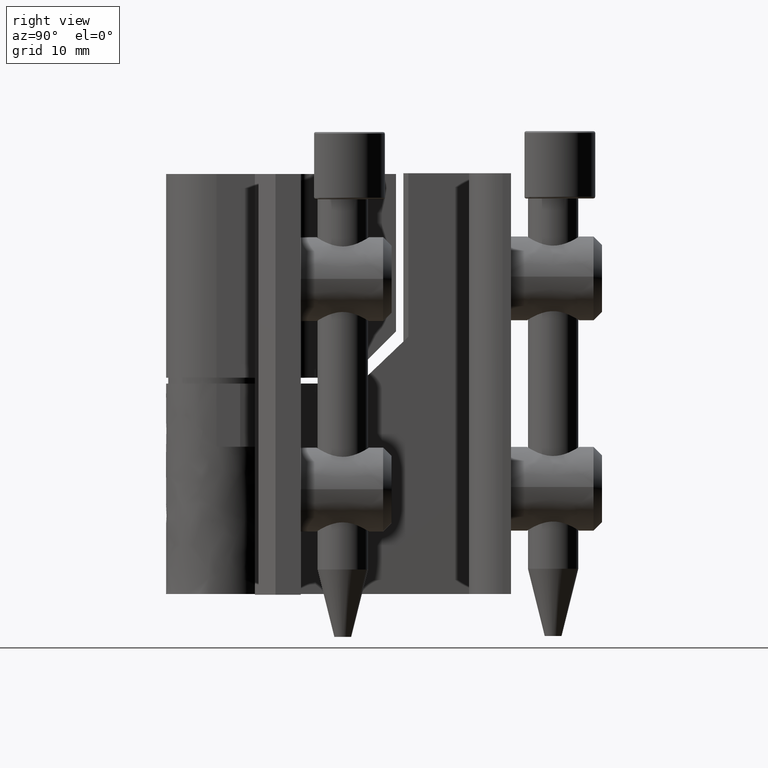
[diagram: clean part render]
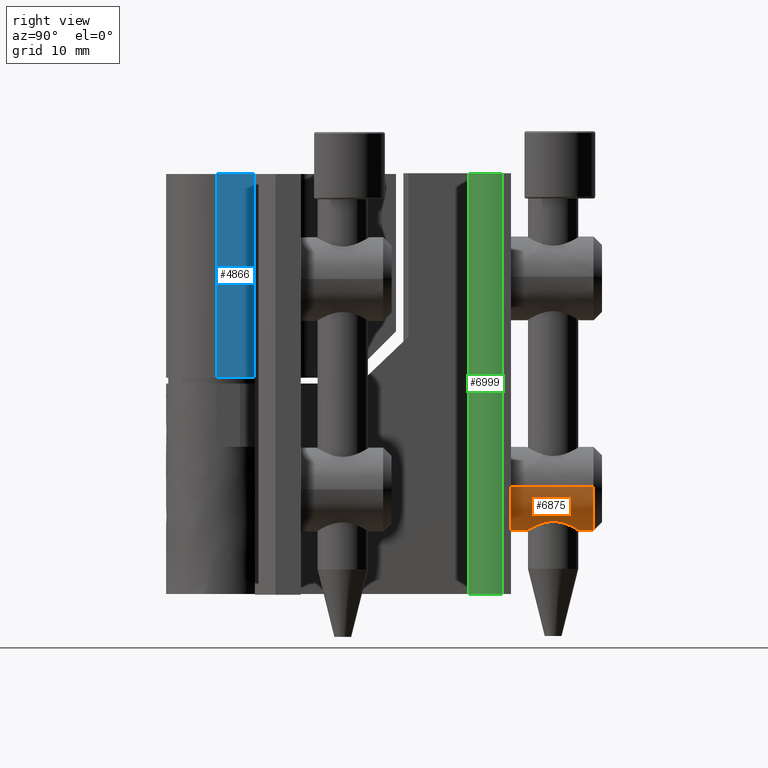
[diagram: same view with three faces highlighted in distinct colors, each labeled with its STEP entity id]
A machine part, right view with three faces highlighted in distinct colors.
Their STEP definitions:

[orange] entity #6875 — the highlighted face is a freeform B-spline surface patch.
#5155=CARTESIAN_POINT('',(16.988968205702800,43.099968465432852,7.525013327143846));
#5156=VERTEX_POINT('',#5155);
#5157=CARTESIAN_POINT('',(20.076019667212169,40.384796938776873,8.589914018851204));
#5158=VERTEX_POINT('',#5157);
#5159=CARTESIAN_POINT('',(16.988968205702800,43.099968465432852,7.525013327143846));
#5160=CARTESIAN_POINT('',(17.198393258616068,43.100686197953223,7.524548569083834));
#5161=CARTESIAN_POINT('',(17.404955985047540,43.080420136254830,7.537259386909917));
#5162=CARTESIAN_POINT('',(17.710643216144220,43.019230044572708,7.574946306571508));
#5163=CARTESIAN_POINT('',(17.812292314731739,42.993468698943403,7.590736091635986));
#5164=CARTESIAN_POINT('',(18.009519537886000,42.932833868835608,7.627468337347260));
#5165=CARTESIAN_POINT('',(18.105618272561951,42.897922678692623,7.648446630334513));
#5166=CARTESIAN_POINT('',(18.293080363551390,42.819267994474323,7.695012138907357));
#5167=CARTESIAN_POINT('',(18.384444056901170,42.775526505107599,7.720601361653727));
#5168=CARTESIAN_POINT('',(18.518058149245618,42.703342948240042,7.762034692775442));
#5169=CARTESIAN_POINT('',(18.562128124394349,42.678117574677970,7.776391017480516));
#5170=CARTESIAN_POINT('',(18.648544897906859,42.625803899112803,7.805851809689370));
#5171=CARTESIAN_POINT('',(18.690865965266429,42.598741701802169,7.820943075198093));
#5172=CARTESIAN_POINT('',(18.898222455475320,42.459011591830233,7.897966341771268));
#5173=CARTESIAN_POINT('',(19.050636098705020,42.333238809322729,7.964596804282546));
#5174=CARTESIAN_POINT('',(19.260749005330020,42.123392172423863,8.067647162425505));
#5175=CARTESIAN_POINT('',(19.327875837400981,42.049575236022939,8.102637736740972));
#5176=CARTESIAN_POINT('',(19.453711816944161,41.897105655604641,8.171593756969466));
#5177=CARTESIAN_POINT('',(19.512701927711859,41.818237795209541,8.205685599576492));
#5178=CARTESIAN_POINT('',(19.678261274716061,41.573453215685262,8.305458274818937));
#5179=CARTESIAN_POINT('',(19.773559772797540,41.399478424640492,8.368725148944275));
#5180=CARTESIAN_POINT('',(19.872883164686140,41.165808008446980,8.438252905645191));
#5181=CARTESIAN_POINT('',(19.891693907005770,41.118337868233922,8.451637946301837));
#5182=CARTESIAN_POINT('',(19.926852015939438,41.022791668502769,8.476982896764790));
#5183=CARTESIAN_POINT('',(19.943254031015819,40.974591334550873,8.488980903379046));
#5184=CARTESIAN_POINT('',(19.988926827561901,40.828672389997251,8.522763372446402));
#5185=CARTESIAN_POINT('',(20.014663734815151,40.729634317716048,8.542329116761225));
#5186=CARTESIAN_POINT('',(20.052132053298880,40.548640496168247,8.571184776951640));
#5187=CARTESIAN_POINT('',(20.065696470159459,40.467280351914589,8.581791201790180));
#5188=CARTESIAN_POINT('',(20.076019667212169,40.384796938776873,8.589914018851204));
#5189=B_SPLINE_CURVE_WITH_KNOTS('',3,(#5159,#5160,#5161,#5162,#5163,#5164,#5165,#5166,#5167,#5168,#5169,#5170,#5171,#5172,#5173,#5174,#5175,#5176,#5177,#5178,#5179,#5180,#5181,#5182,#5183,#5184,#5185,#5186,#5187,#5188),.UNSPECIFIED.,.F.,.U.,(4,2,2,2,2,2,2,2,2,2,2,2,2,2,4),(0.500000000000014,0.531250000000014,0.546875000000013,0.562500000000013,0.578125000000012,0.585937500000012,0.593750000000012,0.625000000000012,0.640625000000011,0.656250000000011,0.687500000000011,0.695312500000010,0.703125000000010,0.718750000000009,0.731145047173596),.UNSPECIFIED.);
#5190=EDGE_CURVE('',#5156,#5158,#5189,.T.);
#5272=CARTESIAN_POINT('',(13.900122840445709,39.972942222683670,8.608808314004055));
#5273=VERTEX_POINT('',#5272);
#5279=CARTESIAN_POINT('',(13.900122840445709,39.972942222683670,8.608808314004055));
#5280=CARTESIAN_POINT('',(13.900062961870731,39.979774783309132,8.608856040039306));
#5281=CARTESIAN_POINT('',(13.900025811113061,39.986602339152867,8.608885656416613));
#5282=CARTESIAN_POINT('',(13.899569124321800,40.203312665602837,8.609249496516124));
#5283=CARTESIAN_POINT('',(13.920222770609559,40.409507495406828,8.592539752993538));
#5284=CARTESIAN_POINT('',(13.981502486259441,40.713684613501783,8.545262351322654));
#5285=CARTESIAN_POINT('',(14.007187344541910,40.814562474990112,8.525696519962532));
#5286=CARTESIAN_POINT('',(14.067389896207620,41.010063467917462,8.481068028952816));
#5287=CARTESIAN_POINT('',(14.101979499245241,41.105264724927217,8.455948600910931));
#5288=CARTESIAN_POINT('',(14.179825108612439,41.291019226898911,8.401282073135262));
#5289=CARTESIAN_POINT('',(14.223075710480961,41.381575504166179,8.371738216785131));
#5290=CARTESIAN_POINT('',(14.294468225308870,41.514136656480822,8.324892623233804));
#5291=CARTESIAN_POINT('',(14.319335970998750,41.557725288564257,8.308868932839390));
#5292=CARTESIAN_POINT('',(14.370791643165211,41.643081220658381,8.276399292947064));
#5293=CARTESIAN_POINT('',(14.397430996826600,41.684947095365949,8.259919242389396));
#5294=CARTESIAN_POINT('',(14.535137394846750,41.890393319340433,8.176616529297814));
#5295=CARTESIAN_POINT('',(14.659583205616620,42.042461169669728,8.107134268835148));
#5296=CARTESIAN_POINT('',(14.833991969993001,42.218301768091749,8.021100846584542));
#5297=CARTESIAN_POINT('',(14.869918584797890,42.252825464572183,8.003890750226972));
#5298=CARTESIAN_POINT('',(14.943157854940290,42.319879046943939,7.969917688649448));
#5299=CARTESIAN_POINT('',(14.980488320564950,42.352438461510012,7.953143008516847));
#5300=CARTESIAN_POINT('',(15.094614292673629,42.447284567298468,7.903588189829659));
#5301=CARTESIAN_POINT('',(15.173534511648270,42.506755130904757,7.871579061561344));
#5302=CARTESIAN_POINT('',(15.419111288797360,42.673958615340759,7.779621950261450));
#5303=CARTESIAN_POINT('',(15.594447702652889,42.770670031982540,7.723705928388862));
#5304=CARTESIAN_POINT('',(15.972212889642250,42.931864064871057,7.628427804732023));
#5305=CARTESIAN_POINT('',(16.167289858143590,42.993152072173508,7.590998456638343));
#5306=CARTESIAN_POINT('',(16.468877166636339,43.055859431325253,7.552394992509092));
#5307=CARTESIAN_POINT('',(16.570940795088980,43.071885684291509,7.542448442011565));
#5308=CARTESIAN_POINT('',(16.778287577486111,43.093813102292387,7.528858032901595));
#5309=CARTESIAN_POINT('',(16.884255640218441,43.099609572588783,7.525245501728962));
#5310=CARTESIAN_POINT('',(16.988968205702800,43.099968465432852,7.525013327143846));
#5311=B_SPLINE_CURVE_WITH_KNOTS('',3,(#5279,#5280,#5281,#5282,#5283,#5284,#5285,#5286,#5287,#5288,#5289,#5290,#5291,#5292,#5293,#5294,#5295,#5296,#5297,#5298,#5299,#5300,#5301,#5302,#5303,#5304,#5305,#5306,#5307,#5308,#5309,#5310),.UNSPECIFIED.,.F.,.U.,(4,2,2,2,2,2,2,2,2,2,2,2,2,2,2,4),(0.248984492729017,0.250000000000022,0.281250000000021,0.296875000000021,0.312500000000020,0.328125000000019,0.335937500000019,0.343750000000018,0.375000000000016,0.382812500000016,0.390625000000016,0.406250000000016,0.437500000000015,0.468750000000014,0.484375000000014,0.500000000000014),.UNSPECIFIED.);
#5312=EDGE_CURVE('',#5273,#5156,#5311,.T.);
#5339=CARTESIAN_POINT('',(17.000001124969010,36.900001718161207,7.525001093430121));
#5340=VERTEX_POINT('',#5339);
#5341=CARTESIAN_POINT('',(20.076019667212169,40.384796938776873,8.589914018851204));
#5342=CARTESIAN_POINT('',(20.078709763223010,40.363303078905993,8.592030755912363));
#5343=CARTESIAN_POINT('',(20.081179767191639,40.341732944493849,8.593978845943676));
#5344=CARTESIAN_POINT('',(20.094289837163060,40.215389087271909,8.604332795659740));
#5345=CARTESIAN_POINT('',(20.099727628290928,40.111010182294073,8.608682874581286));
#5346=CARTESIAN_POINT('',(20.100224573381439,39.902873580245043,8.609078935959197));
#5347=CARTESIAN_POINT('',(20.095213091988100,39.799120080382451,8.605069465674021));
#5348=CARTESIAN_POINT('',(20.079894188575771,39.643952527444668,8.592961234954048));
#5349=CARTESIAN_POINT('',(20.073492372771920,39.592306751776363,8.587916387690319));
#5350=CARTESIAN_POINT('',(20.058057045323210,39.489169324097773,8.575838916128920));
#5351=CARTESIAN_POINT('',(20.048982764089232,39.437503861983018,8.568774963486883));
#5352=CARTESIAN_POINT('',(19.997466676857378,39.182323362226477,8.529035566847156));
#5353=CARTESIAN_POINT('',(19.937017790697521,38.987628990835717,8.483316829099405));
#5354=CARTESIAN_POINT('',(19.819509015417928,38.707481552115873,8.400815537662023));
#5355=CARTESIAN_POINT('',(19.775647773099351,38.615886036577493,8.370876025335701));
#5356=CARTESIAN_POINT('',(19.680566124606042,38.439697689319139,8.308526556378764));
#5357=CARTESIAN_POINT('',(19.629202566794500,38.354678920021293,8.276009105934396));
#5358=CARTESIAN_POINT('',(19.518902789156542,38.190332668595289,8.209320244924333));
#5359=CARTESIAN_POINT('',(19.459969621232521,38.111003159062797,8.175148832903746));
#5360=CARTESIAN_POINT('',(19.334347534963161,37.957790625723270,8.106071429656629));
#5361=CARTESIAN_POINT('',(19.267414209058131,37.883731019527232,8.071057968271106));
#5362=CARTESIAN_POINT('',(19.058122144772550,37.673379625631313,7.968006371482654));
#5363=CARTESIAN_POINT('',(18.906486087960239,37.547471816995973,7.901426973710140));
#5364=CARTESIAN_POINT('',(18.659417915902051,37.379674220715422,7.809083066608964));
#5365=CARTESIAN_POINT('',(18.573783578876292,37.327263746772580,7.779556805517050));
#5366=CARTESIAN_POINT('',(18.439936803716972,37.254246631417757,7.737710285479833));
#5367=CARTESIAN_POINT('',(18.394583231692110,37.230944562192612,7.724224679711495));
#5368=CARTESIAN_POINT('',(18.303130659738851,37.186764418973517,7.698464684932207));
#5369=CARTESIAN_POINT('',(18.256923596244000,37.165826006806078,7.686156065308746));
#5370=CARTESIAN_POINT('',(18.023479378288449,37.066824447398382,7.627609308590335));
#5371=CARTESIAN_POINT('',(17.829035511220209,37.005805433437693,7.590302130322784));
#5372=CARTESIAN_POINT('',(17.575485602734648,36.953480993485442,7.558132744365428));
#5373=CARTESIAN_POINT('',(17.524246946983560,36.944223742241697,7.552425451507994));
#5374=CARTESIAN_POINT('',(17.420663108094150,36.928229438175677,7.542544026281083));
#5375=CARTESIAN_POINT('',(17.368252181208000,36.921496077550302,7.538370586120243));
#5376=CARTESIAN_POINT('',(17.263458466455511,36.910759722325047,7.531704098677481));
#5377=CARTESIAN_POINT('',(17.210939209632620,36.906729813708942,7.529195654341100));
#5378=CARTESIAN_POINT('',(17.105655124963871,36.901348413589972,7.525844128514877));
#5379=CARTESIAN_POINT('',(17.052702492552630,36.899996908414302,7.525001029471605));
#5380=CARTESIAN_POINT('',(17.000001124969010,36.900001718161207,7.525001093430121));
#5381=B_SPLINE_CURVE_WITH_KNOTS('',3,(#5341,#5342,#5343,#5344,#5345,#5346,#5347,#5348,#5349,#5350,#5351,#5352,#5353,#5354,#5355,#5356,#5357,#5358,#5359,#5360,#5361,#5362,#5363,#5364,#5365,#5366,#5367,#5368,#5369,#5370,#5371,#5372,#5373,#5374,#5375,#5376,#5377,#5378,#5379,#5380),.UNSPECIFIED.,.F.,.U.,(4,2,2,2,2,2,2,2,2,2,2,2,2,2,2,2,2,2,2,4),(0.731145047173596,0.734375000000009,0.750000000000008,0.765625000000007,0.773437500000007,0.781250000000007,0.812500000000007,0.828125000000007,0.843750000000007,0.859375000000008,0.875000000000008,0.906250000000008,0.921875000000008,0.929687500000007,0.937500000000007,0.968750000000004,0.976562500000003,0.984375000000002,0.992187500000001,1.0),.UNSPECIFIED.);
#5382=EDGE_CURVE('',#5158,#5340,#5381,.T.);
#5384=CARTESIAN_POINT('',(17.000001124969010,36.900001718161207,7.525001093430121));
#5385=CARTESIAN_POINT('',(16.789195615954299,36.900020915040052,7.525001003242593));
#5386=CARTESIAN_POINT('',(16.582891732935281,36.921264371554201,7.538334035046797));
#5387=CARTESIAN_POINT('',(16.279718494915180,36.983104988201987,7.576364816341523));
#5388=CARTESIAN_POINT('',(16.179708877375301,37.008713222780813,7.592059882820777));
#5389=CARTESIAN_POINT('',(15.981800418429231,37.070147620137107,7.629268678488399));
#5390=CARTESIAN_POINT('',(15.885569345535560,37.105468131960237,7.650469914181983));
#5391=CARTESIAN_POINT('',(15.605192770850550,37.224088300081164,7.720642735818031));
#5392=CARTESIAN_POINT('',(15.428927681609689,37.320059380949338,7.776242510625052));
#5393=CARTESIAN_POINT('',(15.096120269588260,37.545289002634469,7.900283177922500));
#5394=CARTESIAN_POINT('',(14.944071730132301,37.671517485903621,7.967041672735165));
#5395=CARTESIAN_POINT('',(14.735805159790850,37.880327161481397,8.069422018714013));
#5396=CARTESIAN_POINT('',(14.669666416191861,37.953229646256823,8.103944271099795));
#5397=CARTESIAN_POINT('',(14.575337337373391,38.067789740361412,8.155703481745103));
#5398=CARTESIAN_POINT('',(14.544645007305309,38.106941115151393,8.172989990091930));
#5399=CARTESIAN_POINT('',(14.485406458070750,38.186374811423462,8.207145139707338));
#5400=CARTESIAN_POINT('',(14.456818782175869,38.226696144062053,8.224034428988917));
#5401=CARTESIAN_POINT('',(14.318915440579190,38.431353170372077,8.307267680786108));
#5402=CARTESIAN_POINT('',(14.224528585338430,38.604721804227879,8.370047906500346));
#5403=CARTESIAN_POINT('',(14.107110087973540,38.881493289216827,8.452274266975564));
#5404=CARTESIAN_POINT('',(14.072003755909940,38.976588286429987,8.477698407077375));
#5405=CARTESIAN_POINT('',(14.010570127049000,39.173011533954792,8.523144374561925));
#5406=CARTESIAN_POINT('',(13.984828108048220,39.272471056734219,8.542723228527208));
#5407=CARTESIAN_POINT('',(13.943226022609201,39.473981159469282,8.574769628128687));
#5408=CARTESIAN_POINT('',(13.927375969605420,39.576034547088803,8.587228562731337));
#5409=CARTESIAN_POINT('',(13.911248142197209,39.731177866407933,8.599965412042305));
#5410=CARTESIAN_POINT('',(13.907148938363290,39.783236458141580,8.603219813411343));
#5411=CARTESIAN_POINT('',(13.901942486259911,39.881254630175462,8.607358219101714));
#5412=CARTESIAN_POINT('',(13.900523572648320,39.927210530836682,8.608488913004383));
#5413=CARTESIAN_POINT('',(13.900122840445709,39.972942222683670,8.608808314004055));
#5414=B_SPLINE_CURVE_WITH_KNOTS('',3,(#5384,#5385,#5386,#5387,#5388,#5389,#5390,#5391,#5392,#5393,#5394,#5395,#5396,#5397,#5398,#5399,#5400,#5401,#5402,#5403,#5404,#5405,#5406,#5407,#5408,#5409,#5410,#5411,#5412,#5413),.UNSPECIFIED.,.F.,.U.,(4,2,2,2,2,2,2,2,2,2,2,2,2,2,4),(0.0,0.031250000000004,0.046875000000006,0.062500000000008,0.093750000000013,0.125000000000017,0.140625000000020,0.148437500000020,0.156250000000021,0.187500000000022,0.203125000000022,0.218750000000022,0.234375000000022,0.242187500000022,0.248984492729017),.UNSPECIFIED.);
#5415=EDGE_CURVE('',#5340,#5273,#5414,.T.);
#6465=CARTESIAN_POINT('',(17.000001124969000,44.800000275484599,7.525001093430110));
#6466=VERTEX_POINT('',#6465);
#6467=CARTESIAN_POINT('',(14.417707986534669,44.800000275483981,8.247662032544872));
#6468=VERTEX_POINT('',#6467);
#6469=CARTESIAN_POINT('',(17.000001124969000,44.800000275484599,7.525001093430110));
#6470=CARTESIAN_POINT('',(15.607735355693013,44.800000275484599,7.525001093430110));
#6471=CARTESIAN_POINT('',(14.417707986534669,44.800000275483981,8.247662032544872));
#6479=(BOUNDED_CURVE()B_SPLINE_CURVE(2,(#6469,#6470,#6471),.UNSPECIFIED.,.F.,.U.)B_SPLINE_CURVE_WITH_KNOTS((3,3),(0.0,0.088664854626110),.UNSPECIFIED.)CURVE()GEOMETRIC_REPRESENTATION_ITEM()RATIONAL_B_SPLINE_CURVE((1.0,0.896122661331728,0.865927475719211))REPRESENTATION_ITEM(''));
#6480=EDGE_CURVE('',#6466,#6468,#6479,.T.);
#6538=CARTESIAN_POINT('',(12.025190321412140,44.800000275460732,12.456586813336100));
#6539=VERTEX_POINT('',#6538);
#6545=CARTESIAN_POINT('',(12.037922431162141,44.800000275484599,12.858334118698631));
#6546=VERTEX_POINT('',#6545);
#6547=CARTESIAN_POINT('',(12.025190321412142,44.800000275460732,12.456586813336095));
#6548=CARTESIAN_POINT('',(12.025000888669291,44.800000275484592,12.478293658138734));
#6549=CARTESIAN_POINT('',(12.025000888669290,44.800000275484599,12.500001329729820));
#6550=CARTESIAN_POINT('',(12.025000888669293,44.800000275484599,12.679400700770566));
#6551=CARTESIAN_POINT('',(12.037922431162141,44.800000275484599,12.858334118698627));
#6559=(BOUNDED_CURVE()B_SPLINE_CURVE(2,(#6547,#6548,#6549,#6550,#6551),.UNSPECIFIED.,.F.,.U.)B_SPLINE_CURVE_WITH_KNOTS((3,2,3),(0.248460105648936,0.250000000000000,0.262561569263478),.UNSPECIFIED.)CURVE()GEOMETRIC_REPRESENTATION_ITEM()RATIONAL_B_SPLINE_CURVE((0.996414028063200,0.998195901547537,1.0,0.985283206180287,0.972045340559795))REPRESENTATION_ITEM(''));
#6560=EDGE_CURVE('',#6539,#6546,#6559,.T.);
#6577=CARTESIAN_POINT('',(21.970266263410160,44.800000275484592,12.717007792257130));
#6578=VERTEX_POINT('',#6577);
#6592=CARTESIAN_POINT('',(21.970266263410156,44.800000275484592,12.717007792257126));
#6593=CARTESIAN_POINT('',(21.975001361268713,44.800000275484599,12.608556221133716));
#6594=CARTESIAN_POINT('',(21.975001361268710,44.800000275484599,12.500001329729820));
#6595=CARTESIAN_POINT('',(21.975001361268710,44.800000275484614,7.525001093430110));
#6596=CARTESIAN_POINT('',(17.000001124969000,44.800000275484599,7.525001093430110));
#6604=(BOUNDED_CURVE()B_SPLINE_CURVE(2,(#6592,#6593,#6594,#6595,#6596),.UNSPECIFIED.,.F.,.U.)B_SPLINE_CURVE_WITH_KNOTS((3,2,3),(0.742354538564324,0.750000000000000,1.0),.UNSPECIFIED.)CURVE()GEOMETRIC_REPRESENTATION_ITEM()RATIONAL_B_SPLINE_CURVE((0.982633425875640,0.991042784763163,1.0,0.707106781186548,1.0))REPRESENTATION_ITEM(''));
#6605=EDGE_CURVE('',#6578,#6466,#6604,.T.);
#6624=CARTESIAN_POINT('',(14.417707986534669,44.800000275483981,8.247662032544872));
#6625=CARTESIAN_POINT('',(12.049370011997130,44.800000275484592,9.685868740373392));
#6626=CARTESIAN_POINT('',(12.025190321412149,44.800000275460725,12.456586813336093));
#6634=(BOUNDED_CURVE()B_SPLINE_CURVE(2,(#6624,#6625,#6626),.UNSPECIFIED.,.F.,.U.)B_SPLINE_CURVE_WITH_KNOTS((3,3),(0.088664854626110,0.248460105648936),.UNSPECIFIED.)CURVE()GEOMETRIC_REPRESENTATION_ITEM()RATIONAL_B_SPLINE_CURVE((0.865927475719211,0.811508537291132,0.996414028063200))REPRESENTATION_ITEM(''));
#6635=EDGE_CURVE('',#6468,#6539,#6634,.T.);
#6795=CARTESIAN_POINT('',(12.037922431158526,45.045000240557826,12.858334118648592));
#6796=CARTESIAN_POINT('',(12.017165707267457,45.045000240557819,12.570901596260709));
#6797=CARTESIAN_POINT('',(12.029735986524450,45.045000240557819,12.282994867280030));
#6798=CARTESIAN_POINT('',(12.246742448974242,45.045000240557819,7.312729728835484));
#6799=CARTESIAN_POINT('',(17.217007587418792,45.045000240557819,7.529736191285273));
#6800=CARTESIAN_POINT('',(22.187272725863334,45.045000240557819,7.746742653735060));
#6801=CARTESIAN_POINT('',(21.970266263413549,45.045000240557819,12.717007792179610));
#6802=CARTESIAN_POINT('',(12.037922431158526,34.748876708356306,12.858334118648592));
#6803=CARTESIAN_POINT('',(12.017165707267457,34.748876708356299,12.570901596260709));
#6804=CARTESIAN_POINT('',(12.029735986524450,34.748876708356299,12.282994867280030));
#6805=CARTESIAN_POINT('',(12.246742448974242,34.748876708356299,7.312729728835484));
#6806=CARTESIAN_POINT('',(17.217007587418792,34.748876708356299,7.529736191285273));
#6807=CARTESIAN_POINT('',(22.187272725863334,34.748876708356299,7.746742653735060));
#6808=CARTESIAN_POINT('',(21.970266263413549,34.748876708356299,12.717007792179610));
#6816=(BOUNDED_SURFACE()B_SPLINE_SURFACE(2,1,((#6795,#6802),(#6796,#6803),(#6797,#6804),(#6798,#6805),(#6799,#6806),(#6800,#6807),(#6801,#6808)),.UNSPECIFIED.,.F.,.F.,.U.)B_SPLINE_SURFACE_WITH_KNOTS((3,2,2,3),(2,2),(0.0,0.659428022619102,8.902278305357870,17.145128588096640),(0.0,10.296123532201520),.UNSPECIFIED.)GEOMETRIC_REPRESENTATION_ITEM()RATIONAL_B_SPLINE_SURFACE(((0.956886118190660,0.956886118190660),(0.976568542494924,0.976568542494924),(1.0,1.0),(0.707106781186548,0.707106781186548),(1.0,1.0),(0.707106781186548,0.707106781186548),(1.0,1.0)))REPRESENTATION_ITEM('')SURFACE());
#6817=CARTESIAN_POINT('',(17.000001124969000,35.000001672556337,7.525001093430110));
#6818=VERTEX_POINT('',#6817);
#6819=CARTESIAN_POINT('',(12.037922431162141,35.000001672556337,12.858334118698631));
#6820=VERTEX_POINT('',#6819);
#6821=CARTESIAN_POINT('',(17.000001124969000,35.000001672556337,7.525001093430110));
#6822=CARTESIAN_POINT('',(12.025000888669291,35.000001672556344,7.525001093430110));
#6823=CARTESIAN_POINT('',(12.025000888669290,35.000001672556337,12.500001329729820));
#6824=CARTESIAN_POINT('',(12.025000888669293,35.000001672556344,12.679400700770564));
#6825=CARTESIAN_POINT('',(12.037922431162139,35.000001672556351,12.858334118698625));
#6833=(BOUNDED_CURVE()B_SPLINE_CURVE(2,(#6821,#6822,#6823,#6824,#6825),.UNSPECIFIED.,.F.,.U.)B_SPLINE_CURVE_WITH_KNOTS((3,2,3),(0.0,0.250000000000000,0.262561569263478),.UNSPECIFIED.)CURVE()GEOMETRIC_REPRESENTATION_ITEM()RATIONAL_B_SPLINE_CURVE((1.0,0.707106781186548,1.0,0.985283206180287,0.972045340559795))REPRESENTATION_ITEM(''));
#6834=EDGE_CURVE('',#6818,#6820,#6833,.T.);
#6835=ORIENTED_EDGE('',*,*,#6834,.T.);
#6836=CARTESIAN_POINT('',(12.037922431162141,44.800000275484599,12.858334118698631));
#6837=CARTESIAN_POINT('',(12.037922431162141,35.000001672556337,12.858334118698631));
#6838=QUASI_UNIFORM_CURVE('',1,(#6836,#6837),.UNSPECIFIED.,.F.,.U.);
#6839=EDGE_CURVE('',#6546,#6820,#6838,.T.);
#6840=ORIENTED_EDGE('',*,*,#6839,.F.);
#6841=ORIENTED_EDGE('',*,*,#6560,.F.);
#6842=ORIENTED_EDGE('',*,*,#6635,.F.);
#6843=ORIENTED_EDGE('',*,*,#6480,.F.);
#6844=ORIENTED_EDGE('',*,*,#6605,.F.);
#6845=CARTESIAN_POINT('',(21.970266263410160,35.000001672556337,12.717007792257130));
#6846=VERTEX_POINT('',#6845);
#6847=CARTESIAN_POINT('',(21.970266263410160,44.800000275484592,12.717007792257130));
#6848=CARTESIAN_POINT('',(21.970266263410160,35.000001672556337,12.717007792257130));
#6849=QUASI_UNIFORM_CURVE('',1,(#6847,#6848),.UNSPECIFIED.,.F.,.U.);
#6850=EDGE_CURVE('',#6578,#6846,#6849,.T.);
#6851=ORIENTED_EDGE('',*,*,#6850,.T.);
#6852=CARTESIAN_POINT('',(21.970266263410156,35.000001672556351,12.717007792257126));
#6853=CARTESIAN_POINT('',(21.975001361268713,35.000001672556344,12.608556221133716));
#6854=CARTESIAN_POINT('',(21.975001361268710,35.000001672556337,12.500001329729820));
#6855=CARTESIAN_POINT('',(21.975001361268710,35.000001672556344,7.525001093430110));
#6856=CARTESIAN_POINT('',(17.000001124969000,35.000001672556337,7.525001093430110));
#6864=(BOUNDED_CURVE()B_SPLINE_CURVE(2,(#6852,#6853,#6854,#6855,#6856),.UNSPECIFIED.,.F.,.U.)B_SPLINE_CURVE_WITH_KNOTS((3,2,3),(0.742354538564324,0.750000000000000,1.0),.UNSPECIFIED.)CURVE()GEOMETRIC_REPRESENTATION_ITEM()RATIONAL_B_SPLINE_CURVE((0.982633425875640,0.991042784763163,1.0,0.707106781186548,1.0))REPRESENTATION_ITEM(''));
#6865=EDGE_CURVE('',#6846,#6818,#6864,.T.);
#6866=ORIENTED_EDGE('',*,*,#6865,.T.);
#6867=EDGE_LOOP('',(#6835,#6840,#6841,#6842,#6843,#6844,#6851,#6866));
#6868=FACE_OUTER_BOUND('',#6867,.T.);
#6869=ORIENTED_EDGE('',*,*,#5415,.F.);
#6870=ORIENTED_EDGE('',*,*,#5382,.F.);
#6871=ORIENTED_EDGE('',*,*,#5190,.F.);
#6872=ORIENTED_EDGE('',*,*,#5312,.F.);
#6873=EDGE_LOOP('',(#6869,#6870,#6871,#6872));
#6874=FACE_BOUND('',#6873,.T.);
#6875=ADVANCED_FACE('',(#6868,#6874),#6816,.T.);

[blue] entity #4866 — the highlighted face is a freeform B-spline surface patch.
#4466=CARTESIAN_POINT('',(6.200000191992100,4.549999453490110,25.700000839215850));
#4467=VERTEX_POINT('',#4466);
#4673=CARTESIAN_POINT('',(6.200000191991930,-3.562562E-009,49.900001988654402));
#4674=VERTEX_POINT('',#4673);
#4690=CARTESIAN_POINT('',(6.200000191992100,4.550000192364610,49.900001988654402));
#4691=VERTEX_POINT('',#4690);
#4692=CARTESIAN_POINT('',(6.200000191992100,4.550000192364610,49.900001988654402));
#4693=CARTESIAN_POINT('',(6.200000191991930,-3.562562E-009,49.900001988654402));
#4694=QUASI_UNIFORM_CURVE('',1,(#4692,#4693),.UNSPECIFIED.,.F.,.U.);
#4695=EDGE_CURVE('',#4691,#4674,#4694,.T.);
#4822=CARTESIAN_POINT('',(6.200000191991930,-3.562562E-009,25.700000839215850));
#4823=VERTEX_POINT('',#4822);
#4839=CARTESIAN_POINT('',(6.200000191991930,-3.562562E-009,25.700000839215850));
#4840=CARTESIAN_POINT('',(6.200000191991930,-3.562562E-009,49.900001988654402));
#4841=QUASI_UNIFORM_CURVE('',1,(#4839,#4840),.UNSPECIFIED.,.F.,.U.);
#4842=EDGE_CURVE('',#4823,#4674,#4841,.T.);
#4847=CARTESIAN_POINT('',(6.200000191992100,4.777272693332389,51.108791544819972));
#4848=CARTESIAN_POINT('',(6.200000191992100,-0.227272626570856,51.108791544819972));
#4849=CARTESIAN_POINT('',(6.200000191992100,4.777272693332389,24.491210201225929));
#4850=CARTESIAN_POINT('',(6.200000191992100,-0.227272626570856,24.491210201225929));
#4851=B_SPLINE_SURFACE_WITH_KNOTS('',1,1,((#4847,#4849),(#4848,#4850)),.UNSPECIFIED.,.F.,.F.,.U.,(2,2),(2,2),(0.0,5.004545319903246),(0.0,26.617581343594040),.UNSPECIFIED.);
#4852=ORIENTED_EDGE('',*,*,#4695,.T.);
#4853=ORIENTED_EDGE('',*,*,#4842,.F.);
#4854=CARTESIAN_POINT('',(6.200000191992100,4.549999453490110,25.700000839215850));
#4855=CARTESIAN_POINT('',(6.200000191991930,-3.562562E-009,25.700000839215850));
#4856=QUASI_UNIFORM_CURVE('',1,(#4854,#4855),.UNSPECIFIED.,.F.,.U.);
#4857=EDGE_CURVE('',#4467,#4823,#4856,.T.);
#4858=ORIENTED_EDGE('',*,*,#4857,.F.);
#4859=CARTESIAN_POINT('',(6.200000191992100,4.549999453490110,25.700000839215850));
#4860=CARTESIAN_POINT('',(6.200000191992100,4.550000192364610,49.900001988654402));
#4861=QUASI_UNIFORM_CURVE('',1,(#4859,#4860),.UNSPECIFIED.,.F.,.U.);
#4862=EDGE_CURVE('',#4467,#4691,#4861,.T.);
#4863=ORIENTED_EDGE('',*,*,#4862,.T.);
#4864=EDGE_LOOP('',(#4852,#4853,#4858,#4863));
#4865=FACE_OUTER_BOUND('',#4864,.T.);
#4866=ADVANCED_FACE('',(#4865),#4851,.T.);

[green] entity #6999 — the highlighted face is a freeform B-spline surface patch.
#6935=CARTESIAN_POINT('',(28.996194587431759,34.174478915548661,-1.250000059370386));
#6936=CARTESIAN_POINT('',(28.996194587431759,34.174478915548661,51.281252435730117));
#6937=CARTESIAN_POINT('',(29.191739652456597,29.695760383527457,-1.250000059370386));
#6938=CARTESIAN_POINT('',(29.191739652456597,29.695760383527457,51.281252435730110));
#6939=CARTESIAN_POINT('',(24.719769391462613,30.009829717132654,-1.250000059370386));
#6940=CARTESIAN_POINT('',(24.719769391462613,30.009829717132654,51.281252435730131));
#6948=(BOUNDED_SURFACE()B_SPLINE_SURFACE(1,2,((#6935,#6937,#6939),(#6936,#6938,#6940)),.UNSPECIFIED.,.F.,.F.,.U.)B_SPLINE_SURFACE_WITH_KNOTS((2,2),(3,3),(0.0,52.531252495100517),(0.0,7.166970078716904),.UNSPECIFIED.)GEOMETRIC_REPRESENTATION_ITEM()RATIONAL_B_SPLINE_SURFACE(((1.0,0.664513902301866,0.996233553810150),(1.0,0.664513902301866,0.996233553810150)))REPRESENTATION_ITEM('')SURFACE());
#6949=CARTESIAN_POINT('',(25.000001692633951,30.000001374195950,1.429412E-012));
#6950=VERTEX_POINT('',#6949);
#6951=CARTESIAN_POINT('',(29.000001700750300,34.000001366079651,1.429412E-012));
#6952=VERTEX_POINT('',#6951);
#6953=CARTESIAN_POINT('',(25.000001692633951,30.000001374195950,1.443290E-012));
#6954=CARTESIAN_POINT('',(26.656855942126342,30.000001370834042,1.443290E-012));
#6955=CARTESIAN_POINT('',(27.828428819757381,31.171574243710641,1.443290E-012));
#6956=CARTESIAN_POINT('',(29.000001697388420,32.343147116587254,1.443290E-012));
#6957=CARTESIAN_POINT('',(29.000001700750300,34.000001366079651,1.443290E-012));
#6965=(BOUNDED_CURVE()B_SPLINE_CURVE(2,(#6953,#6954,#6955,#6956,#6957),.UNSPECIFIED.,.F.,.U.)B_SPLINE_CURVE_WITH_KNOTS((3,2,3),(0.0,0.500000000000000,1.0),.UNSPECIFIED.)CURVE()GEOMETRIC_REPRESENTATION_ITEM()RATIONAL_B_SPLINE_CURVE((1.0,0.923879532511286,1.0,0.923879532511286,1.0))REPRESENTATION_ITEM(''));
#6966=EDGE_CURVE('',#6950,#6952,#6965,.T.);
#6967=ORIENTED_EDGE('',*,*,#6966,.T.);
#6968=CARTESIAN_POINT('',(29.000001700750300,34.000001366079651,50.000002374874001));
#6969=VERTEX_POINT('',#6968);
#6970=CARTESIAN_POINT('',(29.000001700750300,34.000001366079651,1.429412E-012));
#6971=CARTESIAN_POINT('',(29.000001700750300,34.000001366079651,50.000002374874001));
#6972=QUASI_UNIFORM_CURVE('',1,(#6970,#6971),.UNSPECIFIED.,.F.,.U.);
#6973=EDGE_CURVE('',#6952,#6969,#6972,.T.);
#6974=ORIENTED_EDGE('',*,*,#6973,.T.);
#6975=CARTESIAN_POINT('',(25.000001692633951,30.000001374195950,50.000002374874001));
#6976=VERTEX_POINT('',#6975);
#6977=CARTESIAN_POINT('',(29.000001700750300,34.000001366079651,50.000002374874001));
#6978=CARTESIAN_POINT('',(29.000001697388427,32.343147116587247,50.000002374874008));
#6979=CARTESIAN_POINT('',(27.828428819757381,31.171574243710651,50.000002374874001));
#6980=CARTESIAN_POINT('',(26.656855942126338,30.000001370834038,50.000002374874008));
#6981=CARTESIAN_POINT('',(25.000001692633951,30.000001374195950,50.000002374874001));
#6989=(BOUNDED_CURVE()B_SPLINE_CURVE(2,(#6977,#6978,#6979,#6980,#6981),.UNSPECIFIED.,.F.,.U.)B_SPLINE_CURVE_WITH_KNOTS((3,2,3),(0.0,0.500000000000000,1.0),.UNSPECIFIED.)CURVE()GEOMETRIC_REPRESENTATION_ITEM()RATIONAL_B_SPLINE_CURVE((1.0,0.923879532511286,1.0,0.923879532511286,1.0))REPRESENTATION_ITEM(''));
#6990=EDGE_CURVE('',#6969,#6976,#6989,.T.);
#6991=ORIENTED_EDGE('',*,*,#6990,.T.);
#6992=CARTESIAN_POINT('',(25.000001692633951,30.000001374195950,50.000002374874001));
#6993=CARTESIAN_POINT('',(25.000001692633951,30.000001374195950,1.429412E-012));
#6994=QUASI_UNIFORM_CURVE('',1,(#6992,#6993),.UNSPECIFIED.,.F.,.U.);
#6995=EDGE_CURVE('',#6976,#6950,#6994,.T.);
#6996=ORIENTED_EDGE('',*,*,#6995,.T.);
#6997=EDGE_LOOP('',(#6967,#6974,#6991,#6996));
#6998=FACE_OUTER_BOUND('',#6997,.T.);
#6999=ADVANCED_FACE('',(#6998),#6948,.T.);